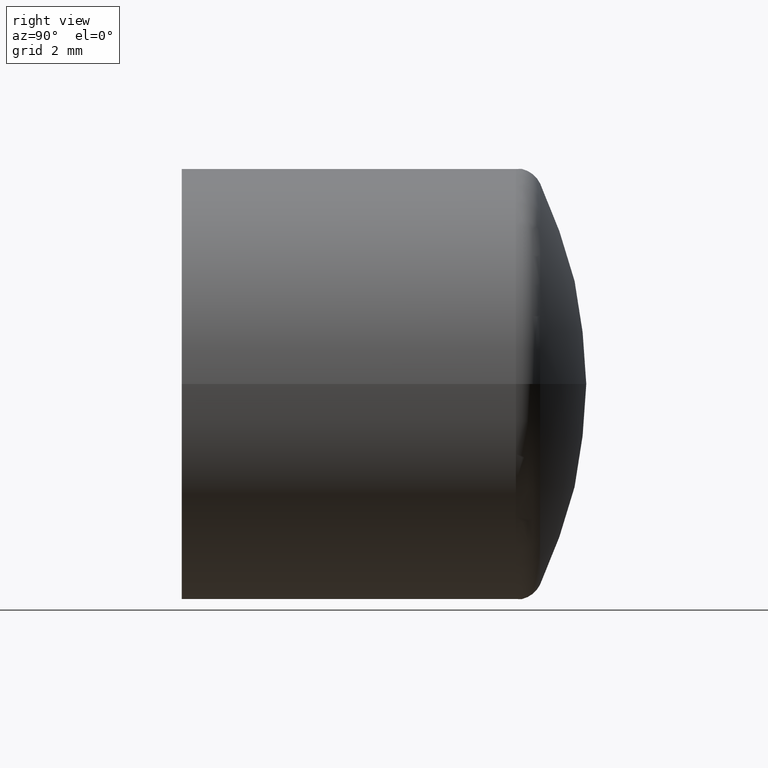
[diagram: clean part render]
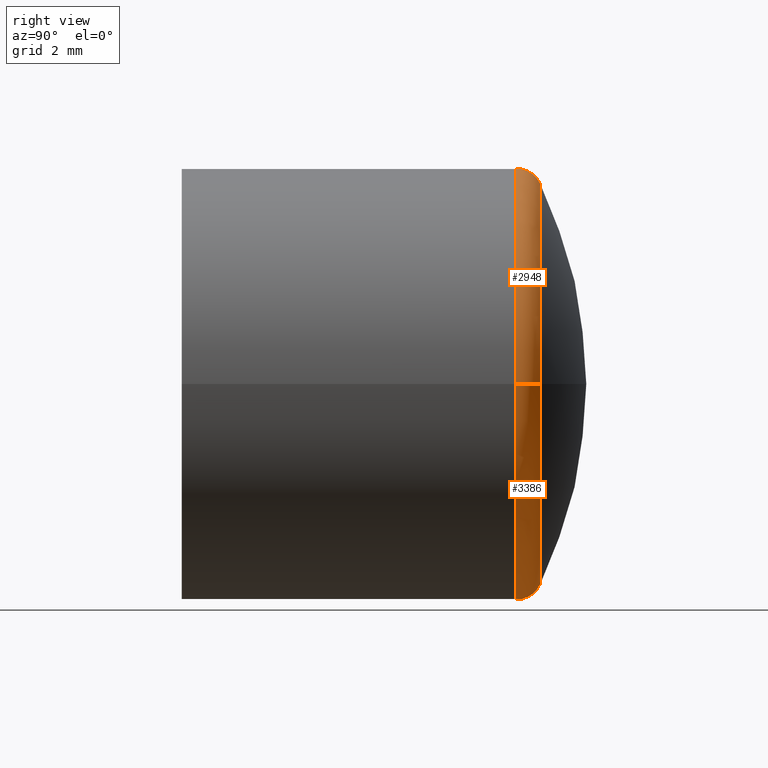
[diagram: same view with one multi-face feature highlighted, each face labeled with its STEP entity id]
A machine part, right view. The highlighted faces form ONE feature: a constant-radius fillet chain: 2 tangent blend faces with common blend radius 1 mm. The faces share edges in the B-rep.
Their STEP definitions:
[1] entity #3386 (Torus):
#126 = AXIS2_PLACEMENT_3D ( 'NONE', #12172, #1012, #8753 ) ;
#471 = VERTEX_POINT ( 'NONE', #3380 ) ;
#566 = AXIS2_PLACEMENT_3D ( 'NONE', #5934, #12421, #11518 ) ;
#1012 = DIRECTION ( 'NONE',  ( 2.201345846305857234E-18, -1.000000000000000000, -0.000000000000000000 ) ) ;
#1121 = CARTESIAN_POINT ( 'NONE',  ( -7.000000000000000000, 12.38749456993815556, 8.572527594031474176E-16 ) ) ;
#1261 = ORIENTED_EDGE ( 'NONE', *, *, #9883, .F. ) ;
#1314 = DIRECTION ( 'NONE',  ( 1.224646799147353454E-16, 2.695871144494789913E-34, 1.000000000000000000 ) ) ;
#2677 = ORIENTED_EDGE ( 'NONE', *, *, #3566, .T. ) ;
#3004 = EDGE_LOOP ( 'NONE', ( #3525, #1261, #2677, #11887 ) ) ;
#3323 = VERTEX_POINT ( 'NONE', #9129 ) ;
#3380 = CARTESIAN_POINT ( 'NONE',  ( 8.000000000000000000, 12.38749456993815556, 0.000000000000000000 ) ) ;
#3386 = ADVANCED_FACE ( 'NONE', ( #5317 ), #12782, .T. ) ;
#3525 = ORIENTED_EDGE ( 'NONE', *, *, #10564, .F. ) ;
#3566 = EDGE_CURVE ( 'NONE', #7582, #471, #11591, .T. ) ;
#4579 = AXIS2_PLACEMENT_3D ( 'NONE', #1121, #1314, #11284 ) ;
#5024 = CARTESIAN_POINT ( 'NONE',  ( -8.000000000000000000, 12.38749456993815556, 9.797174393178825657E-16 ) ) ;
#5317 = FACE_OUTER_BOUND ( 'NONE', #3004, .T. ) ;
#5346 = DIRECTION ( 'NONE',  ( 1.000000000000000000, 2.201345846305857234E-18, 0.000000000000000000 ) ) ;
#5439 = CARTESIAN_POINT ( 'NONE',  ( 5.751027976918129311E-18, 12.38749456993815556, 0.000000000000000000 ) ) ;
#5479 = CIRCLE ( 'NONE', #126, 8.000000000000000000 ) ;
#5869 = AXIS2_PLACEMENT_3D ( 'NONE', #7307, #8473, #11712 ) ;
#5934 = CARTESIAN_POINT ( 'NONE',  ( 7.000000000000000000, 12.38749456993815556, 0.000000000000000000 ) ) ;
#6020 = EDGE_CURVE ( 'NONE', #12673, #471, #5479, .T. ) ;
#7307 = CARTESIAN_POINT ( 'NONE',  ( -3.365134212342405260E-17, 13.28671298055930272, 0.000000000000000000 ) ) ;
#7582 = VERTEX_POINT ( 'NONE', #10255 ) ;
#8473 = DIRECTION ( 'NONE',  ( -2.201345846305857234E-18, 1.000000000000000000, 0.000000000000000000 ) ) ;
#8753 = DIRECTION ( 'NONE',  ( 1.000000000000000000, 0.000000000000000000, 0.000000000000000000 ) ) ;
#9129 = CARTESIAN_POINT ( 'NONE',  ( -7.437499999999990230, 13.28671298055930272, 9.108310568658426644E-16 ) ) ;
#9883 = EDGE_CURVE ( 'NONE', #7582, #3323, #12389, .T. ) ;
#10255 = CARTESIAN_POINT ( 'NONE',  ( 7.437499999999990230, 13.28671298055930272, 0.000000000000000000 ) ) ;
#10564 = EDGE_CURVE ( 'NONE', #3323, #12673, #11869, .T. ) ;
#10754 = AXIS2_PLACEMENT_3D ( 'NONE', #5439, #13181, #5346 ) ;
#11284 = DIRECTION ( 'NONE',  ( 1.000000000000000000, 0.000000000000000000, -1.224646799147353454E-16 ) ) ;
#11518 = DIRECTION ( 'NONE',  ( -1.000000000000000000, 0.000000000000000000, 0.000000000000000000 ) ) ;
#11591 = CIRCLE ( 'NONE', #566, 1.000000000000000000 ) ;
#11712 = DIRECTION ( 'NONE',  ( 1.000000000000000000, 0.000000000000000000, 0.000000000000000000 ) ) ;
#11869 = CIRCLE ( 'NONE', #4579, 1.000000000000000000 ) ;
#11887 = ORIENTED_EDGE ( 'NONE', *, *, #6020, .F. ) ;
#12172 = CARTESIAN_POINT ( 'NONE',  ( 5.751027976918133163E-18, 12.38749456993815556, 0.000000000000000000 ) ) ;
#12389 = CIRCLE ( 'NONE', #5869, 7.437500000000002665 ) ;
#12421 = DIRECTION ( 'NONE',  ( 0.000000000000000000, 0.000000000000000000, -1.000000000000000000 ) ) ;
#12673 = VERTEX_POINT ( 'NONE', #5024 ) ;
#12782 = TOROIDAL_SURFACE ( 'NONE', #10754, 7.000000000000000000, 1.000000000000000000 ) ;
#13181 = DIRECTION ( 'NONE',  ( 2.201345846305857234E-18, -1.000000000000000000, -0.000000000000000000 ) ) ;
[2] entity #2948 (Torus):
#471 = VERTEX_POINT ( 'NONE', #3380 ) ;
#566 = AXIS2_PLACEMENT_3D ( 'NONE', #5934, #12421, #11518 ) ;
#1121 = CARTESIAN_POINT ( 'NONE',  ( -7.000000000000000000, 12.38749456993815556, 8.572527594031474176E-16 ) ) ;
#1314 = DIRECTION ( 'NONE',  ( 1.224646799147353454E-16, 2.695871144494789913E-34, 1.000000000000000000 ) ) ;
#1417 = TOROIDAL_SURFACE ( 'NONE', #7780, 7.000000000000000000, 1.000000000000000000 ) ;
#2070 = AXIS2_PLACEMENT_3D ( 'NONE', #13676, #12483, #10408 ) ;
#2084 = ORIENTED_EDGE ( 'NONE', *, *, #6749, .F. ) ;
#2430 = ORIENTED_EDGE ( 'NONE', *, *, #8422, .F. ) ;
#2600 = CARTESIAN_POINT ( 'NONE',  ( 5.751027976918129311E-18, 12.38749456993815556, 0.000000000000000000 ) ) ;
#2810 = ORIENTED_EDGE ( 'NONE', *, *, #10564, .T. ) ;
#2948 = ADVANCED_FACE ( 'NONE', ( #12829 ), #1417, .T. ) ;
#3323 = VERTEX_POINT ( 'NONE', #9129 ) ;
#3380 = CARTESIAN_POINT ( 'NONE',  ( 8.000000000000000000, 12.38749456993815556, 0.000000000000000000 ) ) ;
#3566 = EDGE_CURVE ( 'NONE', #7582, #471, #11591, .T. ) ;
#3697 = DIRECTION ( 'NONE',  ( 1.000000000000000000, 2.201345846305857234E-18, 0.000000000000000000 ) ) ;
#4424 = CIRCLE ( 'NONE', #12078, 8.000000000000000000 ) ;
#4579 = AXIS2_PLACEMENT_3D ( 'NONE', #1121, #1314, #11284 ) ;
#5024 = CARTESIAN_POINT ( 'NONE',  ( -8.000000000000000000, 12.38749456993815556, 9.797174393178825657E-16 ) ) ;
#5934 = CARTESIAN_POINT ( 'NONE',  ( 7.000000000000000000, 12.38749456993815556, 0.000000000000000000 ) ) ;
#6749 = EDGE_CURVE ( 'NONE', #3323, #7582, #10521, .T. ) ;
#7582 = VERTEX_POINT ( 'NONE', #10255 ) ;
#7780 = AXIS2_PLACEMENT_3D ( 'NONE', #2600, #10353, #3697 ) ;
#8422 = EDGE_CURVE ( 'NONE', #471, #12673, #4424, .T. ) ;
#9129 = CARTESIAN_POINT ( 'NONE',  ( -7.437499999999990230, 13.28671298055930272, 9.108310568658426644E-16 ) ) ;
#9234 = ORIENTED_EDGE ( 'NONE', *, *, #3566, .F. ) ;
#10255 = CARTESIAN_POINT ( 'NONE',  ( 7.437499999999990230, 13.28671298055930272, 0.000000000000000000 ) ) ;
#10353 = DIRECTION ( 'NONE',  ( 2.201345846305857234E-18, -1.000000000000000000, -0.000000000000000000 ) ) ;
#10408 = DIRECTION ( 'NONE',  ( 1.000000000000000000, 0.000000000000000000, 0.000000000000000000 ) ) ;
#10521 = CIRCLE ( 'NONE', #2070, 7.437500000000002665 ) ;
#10564 = EDGE_CURVE ( 'NONE', #3323, #12673, #11869, .T. ) ;
#10658 = DIRECTION ( 'NONE',  ( 2.201345846305857234E-18, -1.000000000000000000, -0.000000000000000000 ) ) ;
#11284 = DIRECTION ( 'NONE',  ( 1.000000000000000000, 0.000000000000000000, -1.224646799147353454E-16 ) ) ;
#11518 = DIRECTION ( 'NONE',  ( -1.000000000000000000, 0.000000000000000000, 0.000000000000000000 ) ) ;
#11591 = CIRCLE ( 'NONE', #566, 1.000000000000000000 ) ;
#11869 = CIRCLE ( 'NONE', #4579, 1.000000000000000000 ) ;
#12078 = AXIS2_PLACEMENT_3D ( 'NONE', #13776, #10658, #13918 ) ;
#12421 = DIRECTION ( 'NONE',  ( 0.000000000000000000, 0.000000000000000000, -1.000000000000000000 ) ) ;
#12483 = DIRECTION ( 'NONE',  ( -2.201345846305857234E-18, 1.000000000000000000, 0.000000000000000000 ) ) ;
#12673 = VERTEX_POINT ( 'NONE', #5024 ) ;
#12829 = FACE_OUTER_BOUND ( 'NONE', #12831, .T. ) ;
#12831 = EDGE_LOOP ( 'NONE', ( #2084, #2810, #2430, #9234 ) ) ;
#13676 = CARTESIAN_POINT ( 'NONE',  ( -3.365134212342405260E-17, 13.28671298055930272, 0.000000000000000000 ) ) ;
#13776 = CARTESIAN_POINT ( 'NONE',  ( 5.751027976918133163E-18, 12.38749456993815556, 0.000000000000000000 ) ) ;
#13918 = DIRECTION ( 'NONE',  ( 1.000000000000000000, 0.000000000000000000, 0.000000000000000000 ) ) ;